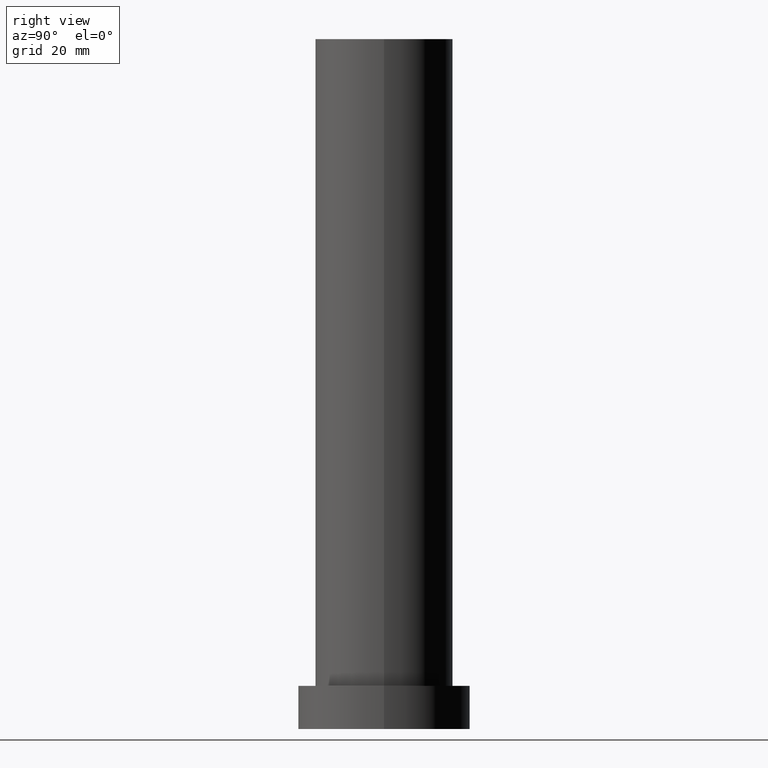
[diagram: clean part render]
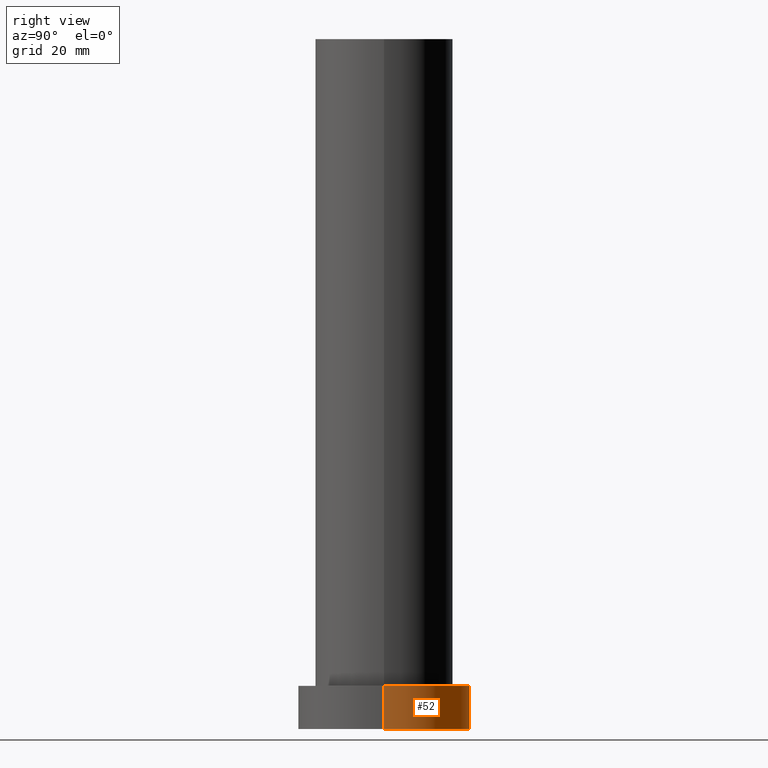
[diagram: same view with one face highlighted and labeled with its STEP entity id]
A machine part, right view. The second image highlights one B-rep face of the part: STEP entity #52.
In plain terms, the highlighted cylindrical surface (partial cylindrical patch) has radius 20 mm, axis along (-0, -0, -1).
Its self-contained STEP definition (entity closure, byte-faithful):
#9 = EDGE_CURVE ( 'NONE', #158, #244, #114, .T. ) ;
#17 = ORIENTED_EDGE ( 'NONE', *, *, #9, .T. ) ;
#32 = ORIENTED_EDGE ( 'NONE', *, *, #177, .F. ) ;
#35 = DIRECTION ( 'NONE',  ( -1.000000000000000000, 0.000000000000000000, 0.000000000000000000 ) ) ;
#50 = VERTEX_POINT ( 'NONE', #253 ) ;
#51 = CYLINDRICAL_SURFACE ( 'NONE', #167, 20.00000000000000000 ) ;
#52 = ADVANCED_FACE ( 'NONE', ( #231 ), #51, .T. ) ;
#54 = DIRECTION ( 'NONE',  ( 1.000000000000000000, 0.000000000000000000, 0.000000000000000000 ) ) ;
#81 = DIRECTION ( 'NONE',  ( -0.000000000000000000, -0.000000000000000000, -1.000000000000000000 ) ) ;
#82 = CARTESIAN_POINT ( 'NONE',  ( 20.00000000000000000, 2.449293598294706513E-15, 10.00000000000000000 ) ) ;
#83 = DIRECTION ( 'NONE',  ( 1.000000000000000000, 0.000000000000000000, 0.000000000000000000 ) ) ;
#100 = EDGE_CURVE ( 'NONE', #236, #158, #238, .T. ) ;
#103 = DIRECTION ( 'NONE',  ( 0.000000000000000000, 0.000000000000000000, 1.000000000000000000 ) ) ;
#111 = AXIS2_PLACEMENT_3D ( 'NONE', #126, #103, #83 ) ;
#112 = ORIENTED_EDGE ( 'NONE', *, *, #166, .F. ) ;
#114 = CIRCLE ( 'NONE', #202, 20.00000000000000000 ) ;
#126 = CARTESIAN_POINT ( 'NONE',  ( 0.000000000000000000, 0.000000000000000000, 10.00000000000000000 ) ) ;
#135 = CARTESIAN_POINT ( 'NONE',  ( 0.000000000000000000, 0.000000000000000000, 10.00000000000000000 ) ) ;
#137 = CIRCLE ( 'NONE', #111, 20.00000000000000000 ) ;
#143 = CARTESIAN_POINT ( 'NONE',  ( 20.00000000000000000, 2.449293598294706513E-15, 0.000000000000000000 ) ) ;
#145 = CARTESIAN_POINT ( 'NONE',  ( 20.00000000000000000, 2.449293598294706513E-15, 10.00000000000000000 ) ) ;
#158 = VERTEX_POINT ( 'NONE', #143 ) ;
#164 = LINE ( 'NONE', #165, #251 ) ;
#165 = CARTESIAN_POINT ( 'NONE',  ( -20.00000000000000000, 0.000000000000000000, 10.00000000000000000 ) ) ;
#166 = EDGE_CURVE ( 'NONE', #50, #244, #164, .T. ) ;
#167 = AXIS2_PLACEMENT_3D ( 'NONE', #135, #213, #35 ) ;
#174 = ORIENTED_EDGE ( 'NONE', *, *, #100, .T. ) ;
#177 = EDGE_CURVE ( 'NONE', #236, #50, #137, .T. ) ;
#181 = DIRECTION ( 'NONE',  ( 0.000000000000000000, 0.000000000000000000, 1.000000000000000000 ) ) ;
#182 = CARTESIAN_POINT ( 'NONE',  ( -20.00000000000000000, 0.000000000000000000, 0.000000000000000000 ) ) ;
#187 = DIRECTION ( 'NONE',  ( -0.000000000000000000, -0.000000000000000000, -1.000000000000000000 ) ) ;
#202 = AXIS2_PLACEMENT_3D ( 'NONE', #250, #181, #54 ) ;
#213 = DIRECTION ( 'NONE',  ( -0.000000000000000000, -0.000000000000000000, -1.000000000000000000 ) ) ;
#231 = FACE_OUTER_BOUND ( 'NONE', #235, .T. ) ;
#235 = EDGE_LOOP ( 'NONE', ( #32, #174, #17, #112 ) ) ;
#236 = VERTEX_POINT ( 'NONE', #82 ) ;
#237 = VECTOR ( 'NONE', #81, 1000.000000000000000 ) ;
#238 = LINE ( 'NONE', #145, #237 ) ;
#244 = VERTEX_POINT ( 'NONE', #182 ) ;
#250 = CARTESIAN_POINT ( 'NONE',  ( 0.000000000000000000, 0.000000000000000000, 0.000000000000000000 ) ) ;
#251 = VECTOR ( 'NONE', #187, 1000.000000000000000 ) ;
#253 = CARTESIAN_POINT ( 'NONE',  ( -20.00000000000000000, 0.000000000000000000, 10.00000000000000000 ) ) ;